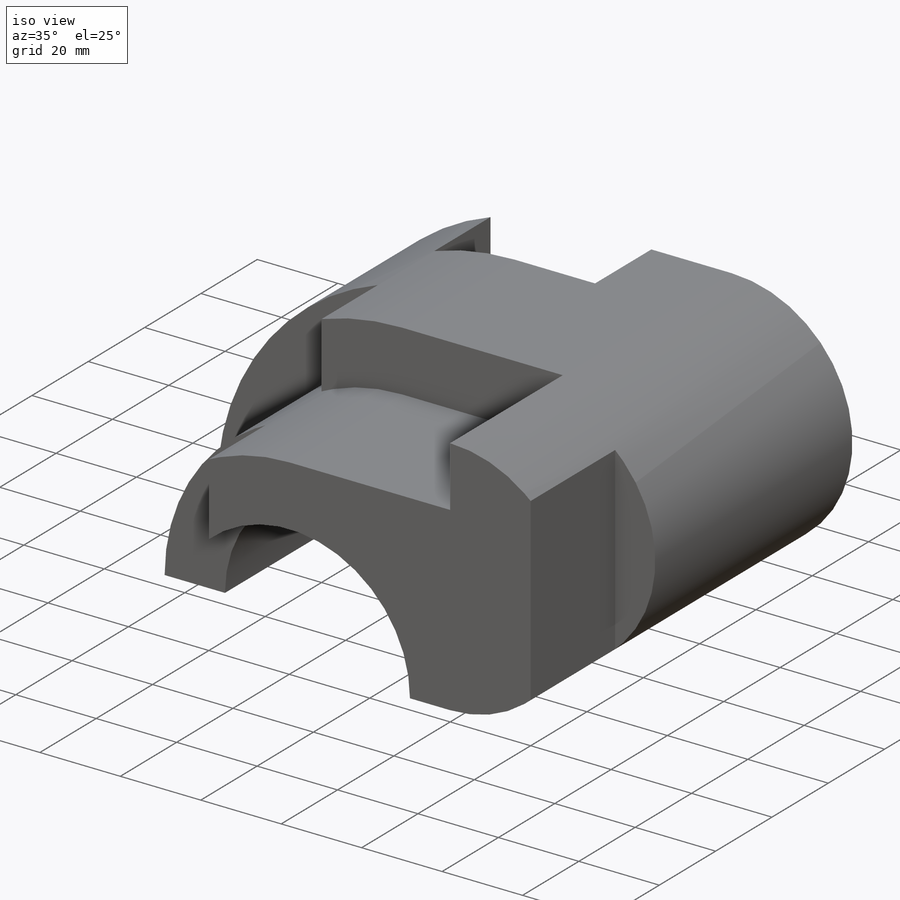
[diagram: iso view]
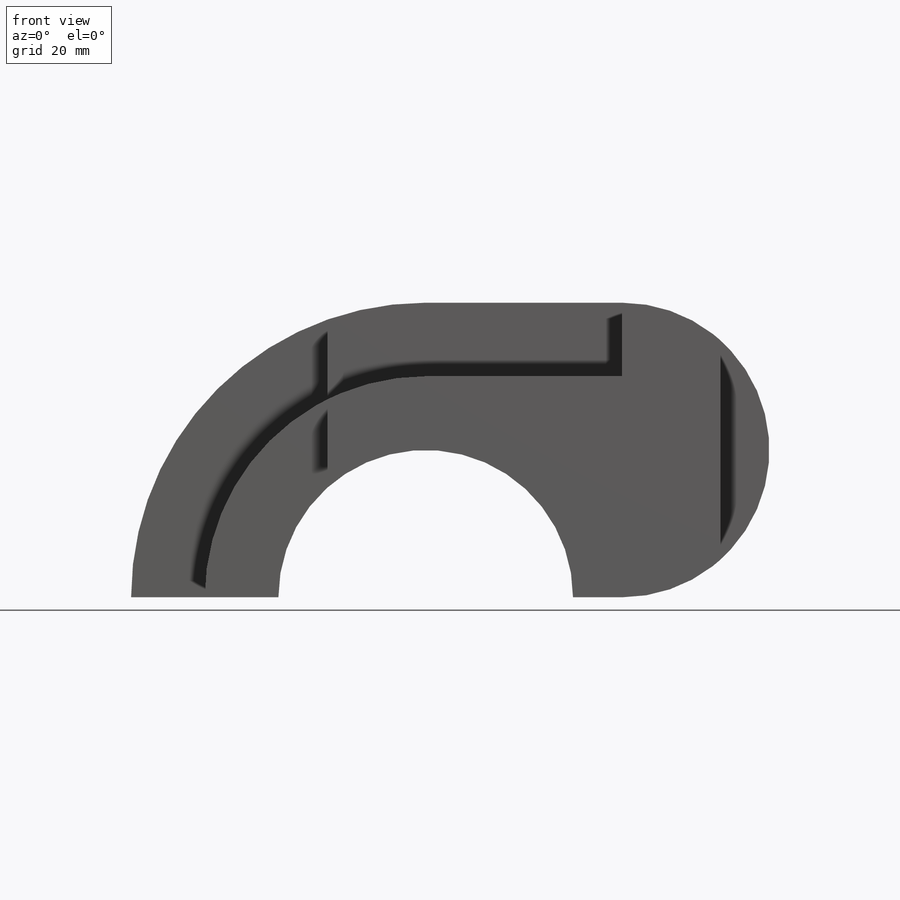
[diagram: front view]
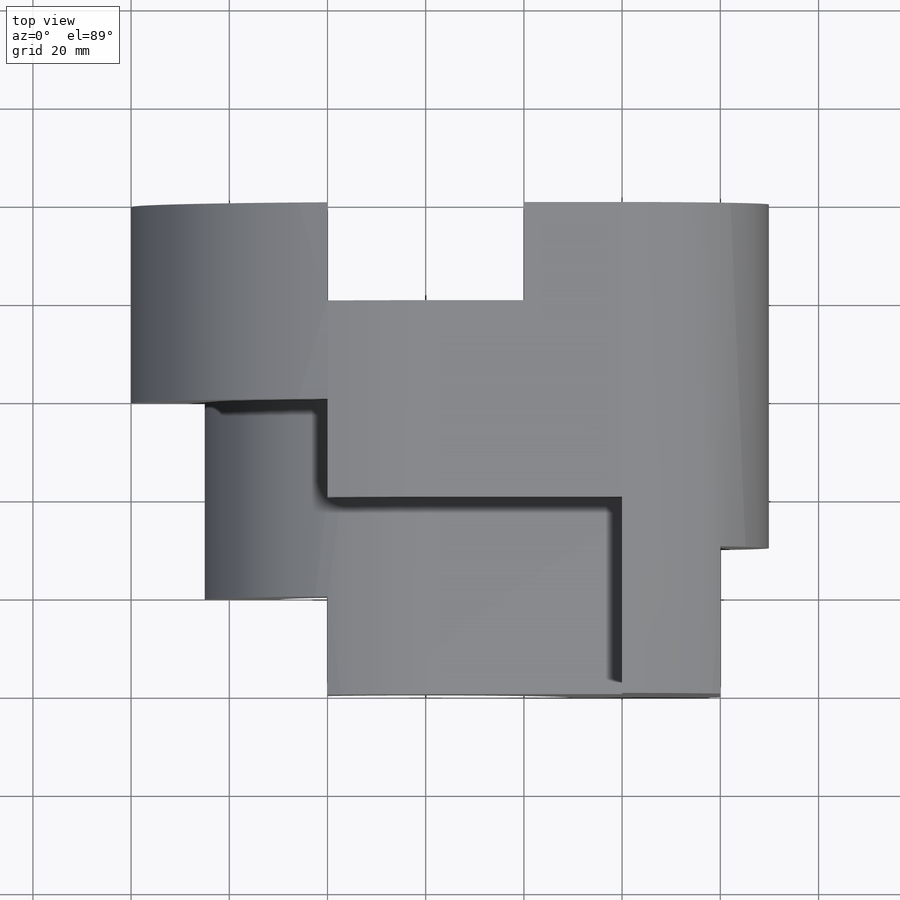
[diagram: top view]
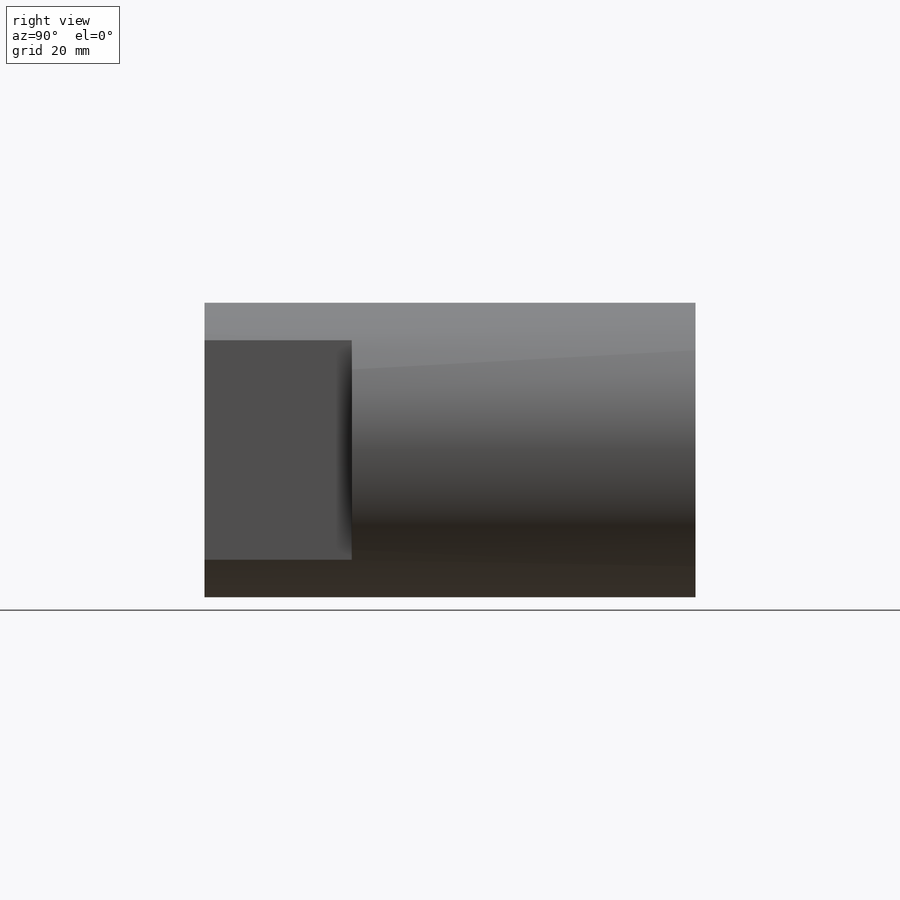
[diagram: right view]
SOLIDWORKS PART (.sldprt)
format: sldprt  version: not decoded by parser v0  size: 384,000 bytes
history: native  units: mm
features: sketch x14, cut_extrude x9, extrude x5, plane x2, material x1 (+13 scaffold rows collapsed)
feature tree (44):
  scaffold x13  (default folders/planes/origin — collapsed)
  material  "Material <not specified>"
  sketch  "Sketch1"  dims[c1.D1=30.0mm c1.D2=30.0mm c1.D3=45.0mm c1.D4=60.0mm c1.D7=30.0mm c2.D1=~60.475418mm c2.D3=~29.922873mm c2.D5=40.0mm c2.D6=60.0mm c2.D8=40.0mm c2.D9=10.0mm c2.D10=40.0mm c2.D11=15.0mm]
  extrude  "Boss-Extrude1"  Depth=100mm
  plane  "Plane1"  Offset=60mm
  plane  "Plane2"  Offset=0mm
  sketch  "Sketch3"  dims[c1.D1=~29.955226mm c1.D2=~23.42353mm c2.D1=10.0mm c2.D2=30.0mm c2.D3=0.0mm c2.D4=0.0mm]
  cut_extrude  "Cut-Extrude1"  Depth=100mm
  sketch  "Sketch4"  dims[c1.D1=~47.400999mm c1.D2=~38.275311mm c2.D1=60.0mm c2.D2=20.0mm c2.D3=0.0mm c2.D4=0.0mm]
  cut_extrude  "Cut-Extrude2"  Depth=100mm
  sketch  "Sketch5"  dims[c1.D1=~69.048735mm c1.D2=~28.70566mm c2.D1=20.0mm c2.D2=20.0mm c2.D3=0.0mm c2.D4=0.0mm]
  cut_extrude  "Cut-Extrude3"  Depth=100mm
  sketch  "Sketch6"  dims[c1.D3=60.0mm c1.D1=40.0mm c1.D2=15.0mm c2.D3=~17.103931mm]
  cut_extrude  "Cut-Extrude6"  Depth=40mm
  sketch  "Sketch7"  dims[c1.D1=~60.132264mm c1.D2=45.0mm c2.D1=15.0mm c2.D2=~24.105831mm]
  cut_extrude  "Cut-Extrude7"  Depth=40mm
  sketch  "Sketch8"  dims[c1.D1=~24.999909mm c1.D2=~46.622545mm c2.D1=40.0mm c2.D2=20.0mm c2.D3=20.0mm c2.D4=50.0mm]
  cut_extrude  "Cut-Extrude17"  Depth=121.999mm
  sketch  "Sketch12"  dims[c1.D1=~0.917225mm c1.D2=20.0mm c2.D1=0.0001mm c2.D2=0.0mm]
  cut_extrude  "Cut-Extrude19"  Depth=0.0001mm
  sketch  "Sketch13"  dims[D1=~20.615528mm]
  cut_extrude  "Cut-Extrude20"  Depth=0.0001mm
  sketch  "Sketch14"
  extrude  "Boss-Extrude4"  Depth=28.999mm
  sketch  "Sketch15"
  extrude  "Boss-Extrude5"  Depth=28.999mm
  sketch  "Sketch16"
  extrude  "Boss-Extrude6"  Depth=28.999mm
  sketch  "Sketch17"
  cut_extrude  "Cut-Extrude25"  Depth=1mm
  sketch  "Sketch18"
  extrude  "Boss-Extrude8"  Depth=1mm
decode coverage: 23 of 28 modeling features carry decoded parameters
note: ~ marks probable driven/reference dimensions
note: suppression state not decoded; provenance and decode notes live in map.json
